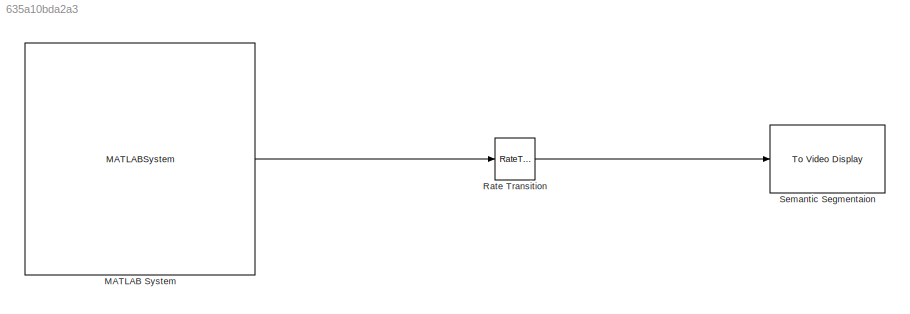
MODEL slx_635a10bda2a3
KIND model
CONFIG AbsTol = auto
CONFIG EnableMultiTasking = off
CONFIG FixedStep = auto
CONFIG MaxStep = auto
CONFIG MinStep = auto
CONFIG RelTol = 1e-3
CONFIG SampleTimeConstraint = Unconstrained
CONFIG Solver = VariableStepAuto
CONFIG SolverName = VariableStepAuto
CONFIG StartTime = 0.0
CONFIG StopTime = inf
BLOCK [MATLABSystem] MATLAB System
  MaskDisplay = disp('CarlaEnvironment');\nport_label('output',1,'RGB');
  MaskType = CarlaEnvironment
  Ports = [0, 1]
  SimulateUsing = Interpreted execution
  System = CarlaEnvironment
BLOCK [RateTransition] Rate Transition
  OutPortSampleTime = .1
BLOCK [Reference] Semantic Segmentaion  REF=visionsinks/To Video Display
  Ports = [1]
  SourceBlock = visionsinks/To Video Display
  SourceProductBaseCode = VP
  SourceProductName = Computer Vision Toolbox
  SourceType = To Video Display
LINE MATLAB System:1 -> Rate Transition:1
LINE Rate Transition:1 -> Semantic Segmentaion:1
